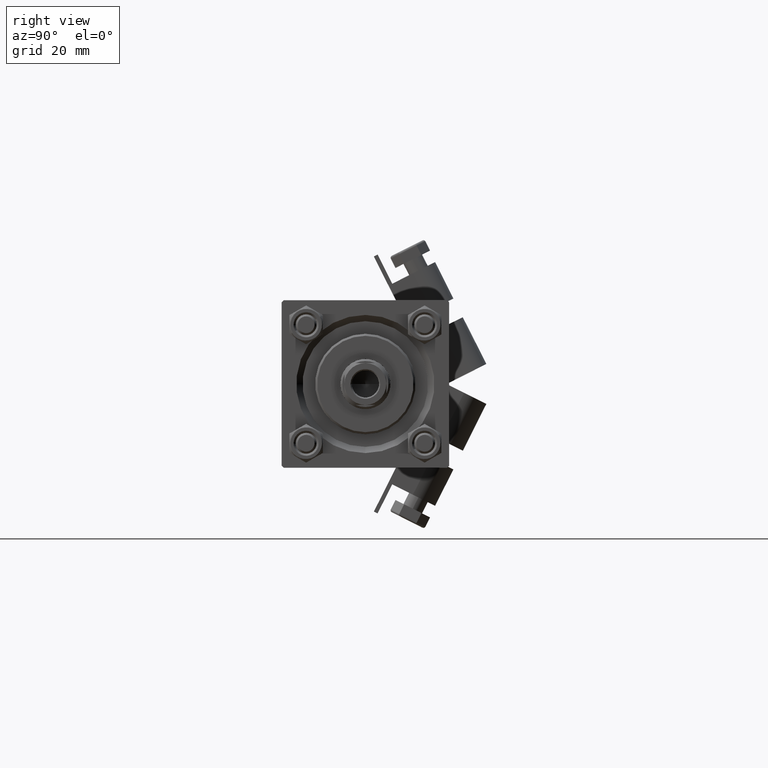
[diagram: clean part render]
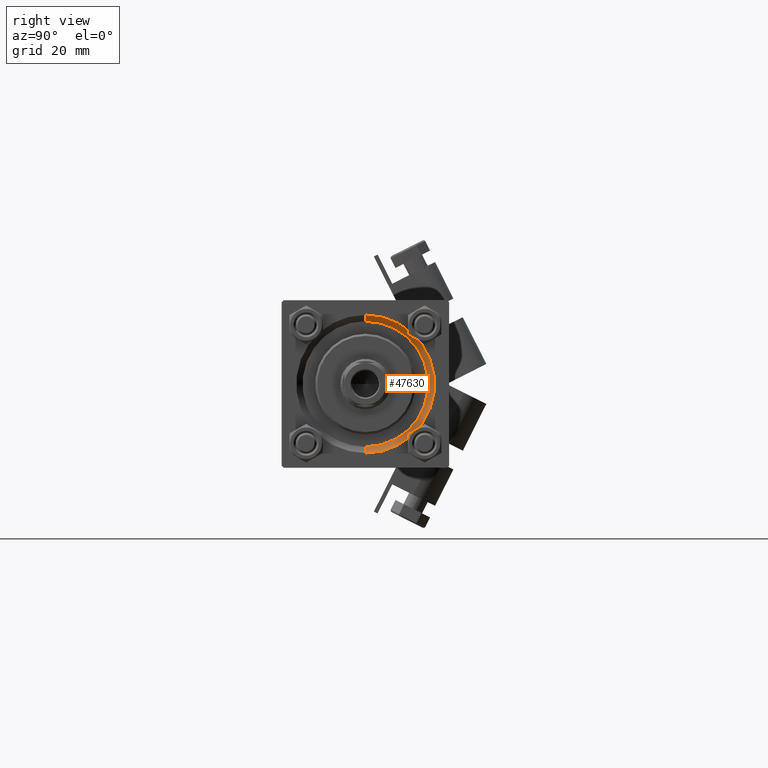
[diagram: same view with one face highlighted and labeled with its STEP entity id]
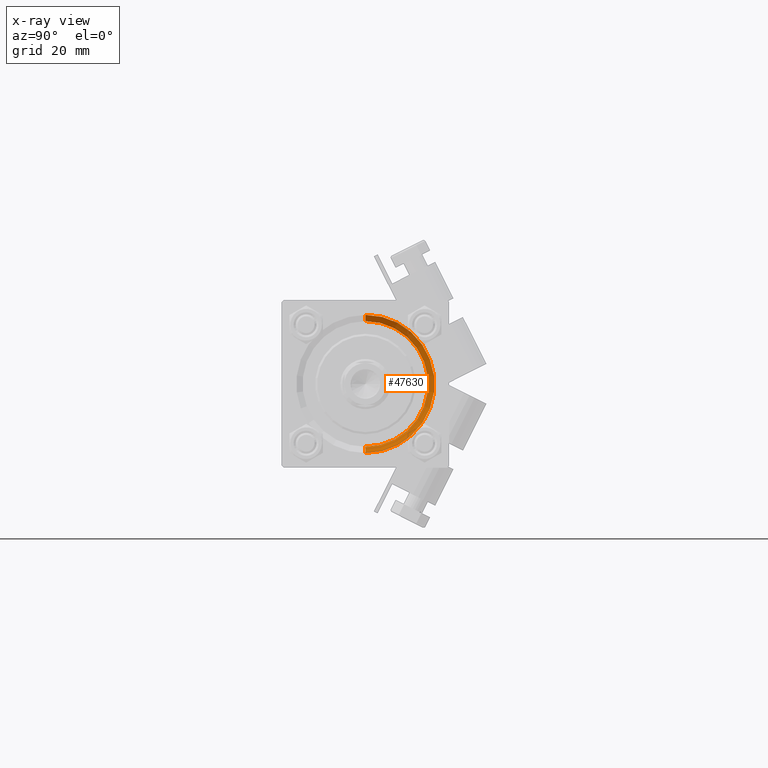
[diagram: x-ray of the same camera — body ghosted, the highlighted face saturated]
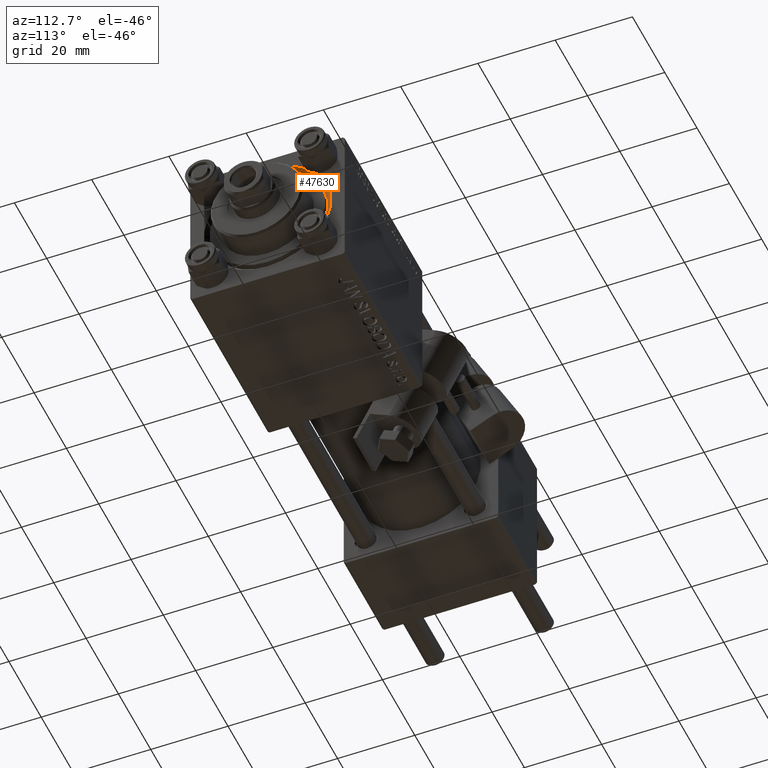
[diagram: same view with one face highlighted and labeled with its STEP entity id]
A machine part, right view. The second image highlights one B-rep face of the part: STEP entity #47630.
The next image is the same camera in x-ray: the body ghosted, the highlighted face saturated — about 0% of this face is hidden behind the body in this view.
A second angle (auxiliary view) of the same face is appended — the face is thin or edge-on in the first view.
In plain terms, the highlighted conical surface has half-angle 45 deg.
Its self-contained STEP definition (entity closure, byte-faithful):
#759 = EDGE_CURVE ( 'NONE', #17084, #15986, #43070, .T. ) ;
#2632 = CONICAL_SURFACE ( 'NONE', #31362, 15.00000000000000000, 0.7853981633974482790 ) ;
#5268 = CARTESIAN_POINT ( 'NONE',  ( 119.0000000000000142, 0.000000000000000000, 0.000000000000000000 ) ) ;
#5778 = DIRECTION ( 'NONE',  ( 1.000000000000000000, 0.000000000000000000, 0.000000000000000000 ) ) ;
#6067 = LINE ( 'NONE', #48496, #34297 ) ;
#8858 = FACE_OUTER_BOUND ( 'NONE', #31881, .T. ) ;
#10405 = EDGE_CURVE ( 'NONE', #41457, #15986, #48412, .T. ) ;
#12844 = CARTESIAN_POINT ( 'NONE',  ( 117.5000000000000000, 0.000000000000000000, -15.00000000000000000 ) ) ;
#13099 = AXIS2_PLACEMENT_3D ( 'NONE', #5268, #43846, #44620 ) ;
#14541 = VECTOR ( 'NONE', #24049, 1000.000000000000114 ) ;
#15812 = ORIENTED_EDGE ( 'NONE', *, *, #759, .T. ) ;
#15986 = VERTEX_POINT ( 'NONE', #28087 ) ;
#16542 = CIRCLE ( 'NONE', #36160, 15.00000000000000000 ) ;
#17084 = VERTEX_POINT ( 'NONE', #12844 ) ;
#21475 = DIRECTION ( 'NONE',  ( 0.000000000000000000, 0.000000000000000000, -1.000000000000000000 ) ) ;
#22827 = CARTESIAN_POINT ( 'NONE',  ( 119.0000000000000142, 2.020667218593134678E-15, 16.50000000000001421 ) ) ;
#24049 = DIRECTION ( 'NONE',  ( 0.7071067811865474617, 0.000000000000000000, -0.7071067811865474617 ) ) ;
#25876 = DIRECTION ( 'NONE',  ( 1.000000000000000000, 0.000000000000000000, 0.000000000000000000 ) ) ;
#26380 = CARTESIAN_POINT ( 'NONE',  ( 117.5000000000000000, 0.000000000000000000, 0.000000000000000000 ) ) ;
#28087 = CARTESIAN_POINT ( 'NONE',  ( 119.0000000000000142, 0.000000000000000000, -16.50000000000001421 ) ) ;
#29979 = DIRECTION ( 'NONE',  ( 0.000000000000000000, 0.000000000000000000, 1.000000000000000000 ) ) ;
#31362 = AXIS2_PLACEMENT_3D ( 'NONE', #41011, #5778, #21475 ) ;
#31881 = EDGE_LOOP ( 'NONE', ( #41142, #46212, #15812, #35105 ) ) ;
#32559 = DIRECTION ( 'NONE',  ( 0.7071067811865474617, 8.659560562354932858E-17, 0.7071067811865474617 ) ) ;
#33571 = EDGE_CURVE ( 'NONE', #44102, #41457, #6067, .T. ) ;
#34297 = VECTOR ( 'NONE', #32559, 1000.000000000000114 ) ;
#35105 = ORIENTED_EDGE ( 'NONE', *, *, #10405, .F. ) ;
#36160 = AXIS2_PLACEMENT_3D ( 'NONE', #26380, #25876, #29979 ) ;
#41011 = CARTESIAN_POINT ( 'NONE',  ( 117.5000000000000000, 0.000000000000000000, 0.000000000000000000 ) ) ;
#41142 = ORIENTED_EDGE ( 'NONE', *, *, #33571, .F. ) ;
#41457 = VERTEX_POINT ( 'NONE', #22827 ) ;
#43070 = LINE ( 'NONE', #50520, #14541 ) ;
#43846 = DIRECTION ( 'NONE',  ( -1.000000000000000000, -0.000000000000000000, -0.000000000000000000 ) ) ;
#43931 = EDGE_CURVE ( 'NONE', #17084, #44102, #16542, .T. ) ;
#44102 = VERTEX_POINT ( 'NONE', #48883 ) ;
#44620 = DIRECTION ( 'NONE',  ( 0.000000000000000000, 0.000000000000000000, 1.000000000000000000 ) ) ;
#46212 = ORIENTED_EDGE ( 'NONE', *, *, #43931, .F. ) ;
#47630 = ADVANCED_FACE ( 'NONE', ( #8858 ), #2632, .F. ) ;
#48412 = CIRCLE ( 'NONE', #13099, 16.50000000000001421 ) ;
#48496 = CARTESIAN_POINT ( 'NONE',  ( 117.5000000000000000, 1.836970198721029589E-15, 15.00000000000000000 ) ) ;
#48883 = CARTESIAN_POINT ( 'NONE',  ( 117.5000000000000000, 1.836970198721029589E-15, 15.00000000000000000 ) ) ;
#50520 = CARTESIAN_POINT ( 'NONE',  ( 117.5000000000000000, 0.000000000000000000, -15.00000000000000000 ) ) ;